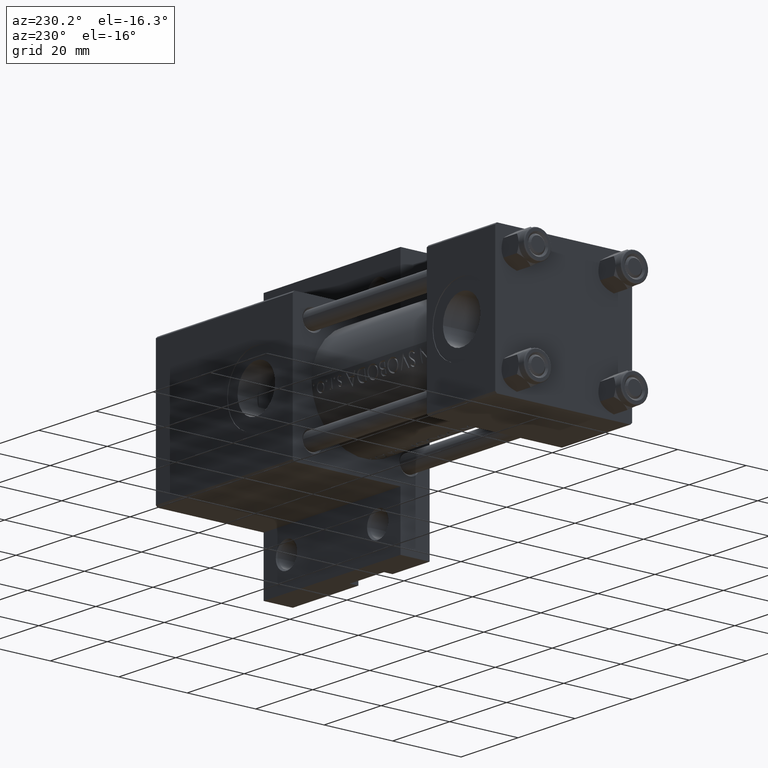
[diagram: clean part render]
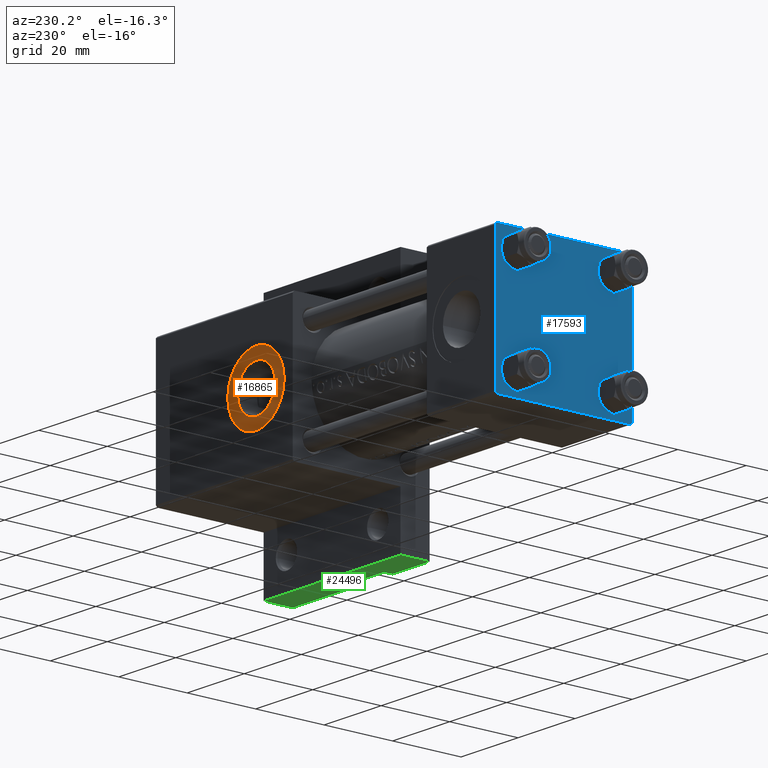
[diagram: same view with three faces highlighted in distinct colors, each labeled with its STEP entity id]
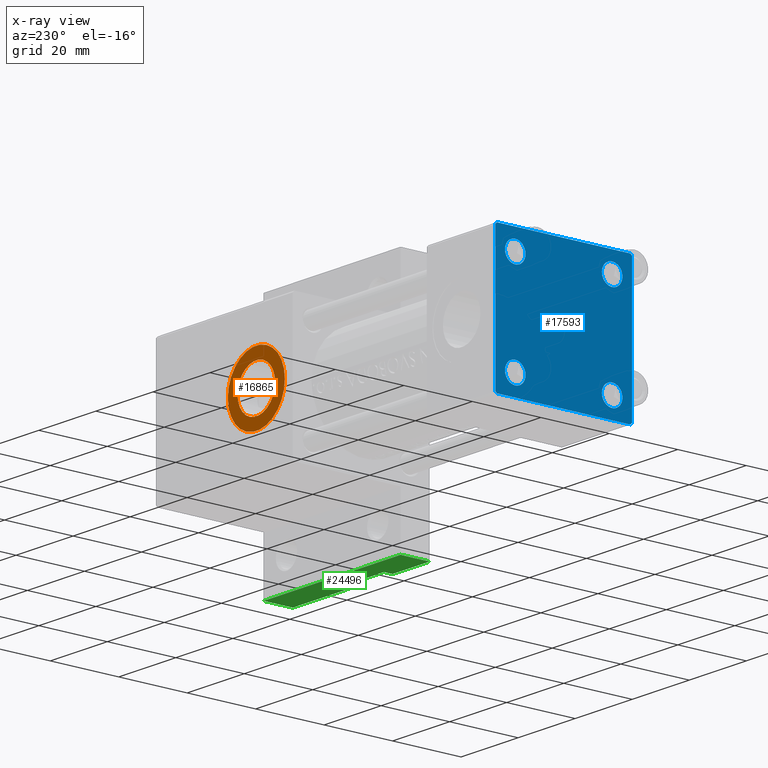
[diagram: x-ray of the same camera — body ghosted, the three highlighted faces saturated]
A machine part, auxiliary view with three faces highlighted in distinct colors.
The next image is the same camera in x-ray (body ghosted, the three faces saturated) — at least one of them is partly hidden behind the body in this view.
Their STEP definitions:

[orange] entity #16865 — the highlighted planar face has unit normal (0, 1, 0).
#124 = VERTEX_POINT ( 'NONE', #36950 ) ;
#1816 = FACE_OUTER_BOUND ( 'NONE', #37593, .T. ) ;
#2161 = AXIS2_PLACEMENT_3D ( 'NONE', #18654, #25185, #21565 ) ;
#2832 = EDGE_CURVE ( 'NONE', #124, #41550, #3675, .T. ) ;
#3675 = CIRCLE ( 'NONE', #2161, 6.580000000001542837 ) ;
#3937 = DIRECTION ( 'NONE',  ( 0.000000000000000000, 0.000000000000000000, 1.000000000000000000 ) ) ;
#4969 = EDGE_CURVE ( 'NONE', #19705, #33747, #20642, .T. ) ;
#5130 = CARTESIAN_POINT ( 'NONE',  ( 84.00000000000000000, -1.734723475976806897E-15, 19.80000000000000071 ) ) ;
#7397 = CARTESIAN_POINT ( 'NONE',  ( 84.00000000000000000, -1.734723475976806897E-15, 19.80000000000000071 ) ) ;
#8961 = CIRCLE ( 'NONE', #32018, 6.580000000001542837 ) ;
#10654 = CARTESIAN_POINT ( 'NONE',  ( 84.00000000000000000, -1.734723475976806897E-15, 19.80000000000000071 ) ) ;
#12828 = CARTESIAN_POINT ( 'NONE',  ( 73.99999999999845102, -5.100766768292640183E-16, 19.80000000000000071 ) ) ;
#14498 = DIRECTION ( 'NONE',  ( 1.000000000000000000, 0.000000000000000000, 0.000000000000000000 ) ) ;
#14552 = AXIS2_PLACEMENT_3D ( 'NONE', #30213, #44849, #23429 ) ;
#14840 = CARTESIAN_POINT ( 'NONE',  ( 90.58000000000154728, -1.734723475976806897E-15, 19.80000000000000071 ) ) ;
#15503 = PLANE ( 'NONE',  #14552 ) ;
#15929 = DIRECTION ( 'NONE',  ( 0.000000000000000000, 0.000000000000000000, 1.000000000000000000 ) ) ;
#16865 = ADVANCED_FACE ( 'NONE', ( #34761, #1816 ), #15503, .T. ) ;
#18654 = CARTESIAN_POINT ( 'NONE',  ( 84.00000000000000000, -1.734723475976806897E-15, 19.80000000000000071 ) ) ;
#19379 = DIRECTION ( 'NONE',  ( 0.000000000000000000, 0.000000000000000000, 1.000000000000000000 ) ) ;
#19705 = VERTEX_POINT ( 'NONE', #12828 ) ;
#19990 = ORIENTED_EDGE ( 'NONE', *, *, #4969, .T. ) ;
#20642 = CIRCLE ( 'NONE', #47565, 10.00000000000154898 ) ;
#21565 = DIRECTION ( 'NONE',  ( 1.000000000000000000, 0.000000000000000000, 0.000000000000000000 ) ) ;
#22817 = ORIENTED_EDGE ( 'NONE', *, *, #32366, .F. ) ;
#23429 = DIRECTION ( 'NONE',  ( 1.000000000000000000, 0.000000000000000000, -0.000000000000000000 ) ) ;
#23597 = CIRCLE ( 'NONE', #27422, 10.00000000000154898 ) ;
#25185 = DIRECTION ( 'NONE',  ( 0.000000000000000000, 0.000000000000000000, 1.000000000000000000 ) ) ;
#26385 = DIRECTION ( 'NONE',  ( 1.000000000000000000, 0.000000000000000000, 0.000000000000000000 ) ) ;
#27422 = AXIS2_PLACEMENT_3D ( 'NONE', #10654, #3937, #14498 ) ;
#29936 = DIRECTION ( 'NONE',  ( 1.000000000000000000, 0.000000000000000000, 0.000000000000000000 ) ) ;
#30213 = CARTESIAN_POINT ( 'NONE',  ( 84.00000000000000000, -1.734723475976806897E-15, 19.80000000000000071 ) ) ;
#30810 = EDGE_LOOP ( 'NONE', ( #22817, #40896 ) ) ;
#32018 = AXIS2_PLACEMENT_3D ( 'NONE', #5130, #15929, #29936 ) ;
#32366 = EDGE_CURVE ( 'NONE', #41550, #124, #8961, .T. ) ;
#33747 = VERTEX_POINT ( 'NONE', #43362 ) ;
#34761 = FACE_BOUND ( 'NONE', #30810, .T. ) ;
#36950 = CARTESIAN_POINT ( 'NONE',  ( 77.41999999999846693, -9.289058821376599092E-16, 19.80000000000000071 ) ) ;
#37593 = EDGE_LOOP ( 'NONE', ( #45813, #19990 ) ) ;
#37910 = EDGE_CURVE ( 'NONE', #33747, #19705, #23597, .T. ) ;
#40896 = ORIENTED_EDGE ( 'NONE', *, *, #2832, .F. ) ;
#41550 = VERTEX_POINT ( 'NONE', #14840 ) ;
#43362 = CARTESIAN_POINT ( 'NONE',  ( 94.00000000000154898, -1.734723475976806897E-15, 19.80000000000000071 ) ) ;
#44849 = DIRECTION ( 'NONE',  ( 0.000000000000000000, 0.000000000000000000, 1.000000000000000000 ) ) ;
#45813 = ORIENTED_EDGE ( 'NONE', *, *, #37910, .T. ) ;
#47565 = AXIS2_PLACEMENT_3D ( 'NONE', #7397, #19379, #26385 ) ;

[blue] entity #17593 — the highlighted planar face has unit normal (-1, 0, -0).
#402 = ORIENTED_EDGE ( 'NONE', *, *, #20593, .T. ) ;
#412 = PLANE ( 'NONE',  #13821 ) ;
#581 = VERTEX_POINT ( 'NONE', #34235 ) ;
#1096 = CARTESIAN_POINT ( 'NONE',  ( 0.000000000000000000, 14.14999999999999858, -17.14999999999998437 ) ) ;
#1553 = EDGE_CURVE ( 'NONE', #17790, #39196, #21666, .T. ) ;
#1739 = DIRECTION ( 'NONE',  ( 0.000000000000000000, 0.000000000000000000, 1.000000000000000000 ) ) ;
#2178 = CARTESIAN_POINT ( 'NONE',  ( 0.000000000000000000, -14.14999999999999503, 11.15000000000002345 ) ) ;
#3595 = LINE ( 'NONE', #25472, #46827 ) ;
#3836 = DIRECTION ( 'NONE',  ( 0.000000000000000000, -1.000000000000000000, 1.734723475976807094E-16 ) ) ;
#4018 = FACE_BOUND ( 'NONE', #9845, .T. ) ;
#4422 = AXIS2_PLACEMENT_3D ( 'NONE', #23170, #15245, #15478 ) ;
#4699 = CIRCLE ( 'NONE', #23119, 2.999999999999983569 ) ;
#4770 = VECTOR ( 'NONE', #42148, 1000.000000000000000 ) ;
#5055 = LINE ( 'NONE', #26948, #25299 ) ;
#5337 = CARTESIAN_POINT ( 'NONE',  ( 0.000000000000000000, 20.00000000000000000, 19.49999999999999289 ) ) ;
#5445 = CARTESIAN_POINT ( 'NONE',  ( 0.000000000000000000, -14.14999999999999503, -14.15000000000000391 ) ) ;
#5877 = ORIENTED_EDGE ( 'NONE', *, *, #26880, .T. ) ;
#6124 = CARTESIAN_POINT ( 'NONE',  ( 0.000000000000000000, -14.14999999999999503, -14.15000000000000391 ) ) ;
#6147 = CARTESIAN_POINT ( 'NONE',  ( 0.000000000000000000, 14.14999999999999858, 11.15000000000001990 ) ) ;
#7068 = ORIENTED_EDGE ( 'NONE', *, *, #1553, .F. ) ;
#7138 = FACE_OUTER_BOUND ( 'NONE', #31977, .T. ) ;
#7394 = VECTOR ( 'NONE', #12468, 1000.000000000000000 ) ;
#7606 = FACE_BOUND ( 'NONE', #12662, .T. ) ;
#7917 = LINE ( 'NONE', #22811, #7394 ) ;
#8303 = VERTEX_POINT ( 'NONE', #8600 ) ;
#8535 = DIRECTION ( 'NONE',  ( -0.000000000000000000, 0.7071067811865500152, 0.7071067811865451302 ) ) ;
#8538 = ORIENTED_EDGE ( 'NONE', *, *, #16488, .T. ) ;
#8600 = CARTESIAN_POINT ( 'NONE',  ( 0.000000000000000000, 14.14999999999999858, -11.15000000000001812 ) ) ;
#8788 = VERTEX_POINT ( 'NONE', #1096 ) ;
#9087 = EDGE_CURVE ( 'NONE', #41103, #35725, #42850, .T. ) ;
#9845 = EDGE_LOOP ( 'NONE', ( #38542, #24285 ) ) ;
#9940 = CARTESIAN_POINT ( 'NONE',  ( 0.000000000000000000, 20.00000000000000000, -19.50000000000002132 ) ) ;
#9955 = VERTEX_POINT ( 'NONE', #15451 ) ;
#10510 = CIRCLE ( 'NONE', #39749, 2.999999999999983569 ) ;
#11057 = CARTESIAN_POINT ( 'NONE',  ( 0.000000000000000000, -20.00000000000000000, -19.49999999999999645 ) ) ;
#11444 = DIRECTION ( 'NONE',  ( -1.000000000000000000, 0.000000000000000000, -0.000000000000000000 ) ) ;
#12062 = CIRCLE ( 'NONE', #38962, 3.000000000000004441 ) ;
#12468 = DIRECTION ( 'NONE',  ( 0.000000000000000000, -0.7071067811865401342, 0.7071067811865549002 ) ) ;
#12537 = DIRECTION ( 'NONE',  ( 1.000000000000000000, 0.000000000000000000, 0.000000000000000000 ) ) ;
#12662 = EDGE_LOOP ( 'NONE', ( #22723, #402 ) ) ;
#12746 = VERTEX_POINT ( 'NONE', #38209 ) ;
#13171 = DIRECTION ( 'NONE',  ( 0.000000000000000000, 0.000000000000000000, 1.000000000000000000 ) ) ;
#13395 = VERTEX_POINT ( 'NONE', #11057 ) ;
#13551 = ORIENTED_EDGE ( 'NONE', *, *, #23773, .T. ) ;
#13821 = AXIS2_PLACEMENT_3D ( 'NONE', #15048, #11444, #26123 ) ;
#13882 = CARTESIAN_POINT ( 'NONE',  ( 0.000000000000000000, 14.14999999999999858, -14.15000000000000036 ) ) ;
#15048 = CARTESIAN_POINT ( 'NONE',  ( 0.000000000000000000, 0.000000000000000000, 0.000000000000000000 ) ) ;
#15245 = DIRECTION ( 'NONE',  ( 1.000000000000000000, 0.000000000000000000, 0.000000000000000000 ) ) ;
#15451 = CARTESIAN_POINT ( 'NONE',  ( 0.000000000000000000, -14.14999999999999503, -17.15000000000000924 ) ) ;
#15478 = DIRECTION ( 'NONE',  ( 0.000000000000000000, 0.000000000000000000, 1.000000000000000000 ) ) ;
#16488 = EDGE_CURVE ( 'NONE', #35725, #21987, #3595, .T. ) ;
#16811 = DIRECTION ( 'NONE',  ( 0.000000000000000000, 8.673617379884036705E-17, -1.000000000000000000 ) ) ;
#16869 = CARTESIAN_POINT ( 'NONE',  ( -0.000000000000000000, 19.74999999999986855, -19.75000000000014211 ) ) ;
#16938 = AXIS2_PLACEMENT_3D ( 'NONE', #22534, #37223, #44897 ) ;
#17243 = VERTEX_POINT ( 'NONE', #2178 ) ;
#17247 = EDGE_CURVE ( 'NONE', #39273, #13395, #5055, .T. ) ;
#17484 = CIRCLE ( 'NONE', #4422, 2.999999999999983569 ) ;
#17593 = ADVANCED_FACE ( 'NONE', ( #7606, #4018, #18414, #33362, #7138 ), #412, .T. ) ;
#17790 = VERTEX_POINT ( 'NONE', #47244 ) ;
#18399 = EDGE_LOOP ( 'NONE', ( #13551, #37788 ) ) ;
#18414 = FACE_BOUND ( 'NONE', #18399, .T. ) ;
#18535 = DIRECTION ( 'NONE',  ( 0.000000000000000000, -1.000000000000000000, -2.602085213965210149E-16 ) ) ;
#19984 = CARTESIAN_POINT ( 'NONE',  ( 0.000000000000000000, -14.14999999999999503, 14.15000000000000391 ) ) ;
#20047 = VERTEX_POINT ( 'NONE', #5337 ) ;
#20359 = LINE ( 'NONE', #35064, #25901 ) ;
#20593 = EDGE_CURVE ( 'NONE', #17243, #12746, #28500, .T. ) ;
#20879 = EDGE_CURVE ( 'NONE', #12746, #17243, #43866, .T. ) ;
#20939 = EDGE_CURVE ( 'NONE', #581, #41752, #4699, .T. ) ;
#21204 = DIRECTION ( 'NONE',  ( 0.000000000000000000, 0.7071067811865425767, -0.7071067811865525687 ) ) ;
#21666 = LINE ( 'NONE', #40218, #22052 ) ;
#21987 = VERTEX_POINT ( 'NONE', #30207 ) ;
#22039 = DIRECTION ( 'NONE',  ( 1.000000000000000000, 0.000000000000000000, 0.000000000000000000 ) ) ;
#22052 = VECTOR ( 'NONE', #18535, 1000.000000000000000 ) ;
#22534 = CARTESIAN_POINT ( 'NONE',  ( 0.000000000000000000, -14.14999999999999503, 14.15000000000000391 ) ) ;
#22650 = AXIS2_PLACEMENT_3D ( 'NONE', #13882, #22039, #35781 ) ;
#22723 = ORIENTED_EDGE ( 'NONE', *, *, #20879, .T. ) ;
#22811 = CARTESIAN_POINT ( 'NONE',  ( 0.000000000000000000, -19.75000000000020961, -19.74999999999979394 ) ) ;
#23119 = AXIS2_PLACEMENT_3D ( 'NONE', #37584, #12537, #34686 ) ;
#23170 = CARTESIAN_POINT ( 'NONE',  ( 0.000000000000000000, 14.14999999999999858, 14.15000000000000036 ) ) ;
#23680 = DIRECTION ( 'NONE',  ( 1.000000000000000000, 0.000000000000000000, 0.000000000000000000 ) ) ;
#23773 = EDGE_CURVE ( 'NONE', #8303, #8788, #43407, .T. ) ;
#24285 = ORIENTED_EDGE ( 'NONE', *, *, #39075, .T. ) ;
#24442 = EDGE_CURVE ( 'NONE', #17790, #20047, #43118, .T. ) ;
#24676 = CARTESIAN_POINT ( 'NONE',  ( 0.000000000000000000, -14.14999999999999503, -11.15000000000000036 ) ) ;
#24679 = AXIS2_PLACEMENT_3D ( 'NONE', #19984, #33756, #1739 ) ;
#24835 = CARTESIAN_POINT ( 'NONE',  ( -0.000000000000000000, 19.75000000000013500, 19.74999999999986144 ) ) ;
#25299 = VECTOR ( 'NONE', #16811, 1000.000000000000000 ) ;
#25472 = CARTESIAN_POINT ( 'NONE',  ( 0.000000000000000000, 20.00000000000000000, -20.00000000000000711 ) ) ;
#25901 = VECTOR ( 'NONE', #26903, 1000.000000000000000 ) ;
#26123 = DIRECTION ( 'NONE',  ( -0.000000000000000000, 0.000000000000000000, 1.000000000000000000 ) ) ;
#26623 = CIRCLE ( 'NONE', #45037, 3.000000000000004441 ) ;
#26880 = EDGE_CURVE ( 'NONE', #39273, #39196, #41957, .T. ) ;
#26903 = DIRECTION ( 'NONE',  ( 0.000000000000000000, 0.000000000000000000, -1.000000000000000000 ) ) ;
#26948 = CARTESIAN_POINT ( 'NONE',  ( 0.000000000000000000, -20.00000000000000355, 19.99999999999998934 ) ) ;
#27483 = CARTESIAN_POINT ( 'NONE',  ( 0.000000000000000000, 19.50000000000000711, -20.00000000000000711 ) ) ;
#28155 = CARTESIAN_POINT ( 'NONE',  ( 0.000000000000000000, -19.49999999999999289, 19.99999999999998934 ) ) ;
#28500 = CIRCLE ( 'NONE', #16938, 2.999999999999983569 ) ;
#29515 = EDGE_CURVE ( 'NONE', #8788, #8303, #10510, .T. ) ;
#30207 = CARTESIAN_POINT ( 'NONE',  ( 0.000000000000000000, -19.50000000000000711, -20.00000000000000000 ) ) ;
#30384 = EDGE_CURVE ( 'NONE', #21987, #13395, #7917, .T. ) ;
#30620 = ORIENTED_EDGE ( 'NONE', *, *, #9087, .T. ) ;
#30954 = DIRECTION ( 'NONE',  ( 1.000000000000000000, 0.000000000000000000, 0.000000000000000000 ) ) ;
#31198 = EDGE_CURVE ( 'NONE', #36363, #9955, #26623, .T. ) ;
#31977 = EDGE_LOOP ( 'NONE', ( #36336, #30620, #8538, #43358, #32575, #5877, #7068, #45663 ) ) ;
#32008 = CARTESIAN_POINT ( 'NONE',  ( 0.000000000000000000, -20.00000000000000355, 19.49999999999998224 ) ) ;
#32159 = EDGE_CURVE ( 'NONE', #20047, #41103, #20359, .T. ) ;
#32575 = ORIENTED_EDGE ( 'NONE', *, *, #17247, .F. ) ;
#33362 = FACE_BOUND ( 'NONE', #42729, .T. ) ;
#33756 = DIRECTION ( 'NONE',  ( 1.000000000000000000, 0.000000000000000000, 0.000000000000000000 ) ) ;
#34235 = CARTESIAN_POINT ( 'NONE',  ( 0.000000000000000000, 14.14999999999999858, 17.14999999999998437 ) ) ;
#34686 = DIRECTION ( 'NONE',  ( 0.000000000000000000, 0.000000000000000000, 1.000000000000000000 ) ) ;
#34906 = ORIENTED_EDGE ( 'NONE', *, *, #39147, .T. ) ;
#35064 = CARTESIAN_POINT ( 'NONE',  ( 0.000000000000000000, 20.00000000000000000, 20.00000000000000000 ) ) ;
#35725 = VERTEX_POINT ( 'NONE', #27483 ) ;
#35781 = DIRECTION ( 'NONE',  ( 0.000000000000000000, 0.000000000000000000, 1.000000000000000000 ) ) ;
#36336 = ORIENTED_EDGE ( 'NONE', *, *, #32159, .T. ) ;
#36363 = VERTEX_POINT ( 'NONE', #24676 ) ;
#37223 = DIRECTION ( 'NONE',  ( 1.000000000000000000, 0.000000000000000000, 0.000000000000000000 ) ) ;
#37584 = CARTESIAN_POINT ( 'NONE',  ( 0.000000000000000000, 14.14999999999999858, 14.15000000000000036 ) ) ;
#37645 = CARTESIAN_POINT ( 'NONE',  ( -0.000000000000000000, -19.74999999999992539, 19.75000000000006395 ) ) ;
#37788 = ORIENTED_EDGE ( 'NONE', *, *, #29515, .T. ) ;
#38092 = VECTOR ( 'NONE', #21204, 999.9999999999998863 ) ;
#38209 = CARTESIAN_POINT ( 'NONE',  ( 0.000000000000000000, -14.14999999999999503, 17.14999999999998792 ) ) ;
#38372 = DIRECTION ( 'NONE',  ( 0.000000000000000000, 0.000000000000000000, 1.000000000000000000 ) ) ;
#38542 = ORIENTED_EDGE ( 'NONE', *, *, #31198, .T. ) ;
#38807 = VECTOR ( 'NONE', #8535, 1000.000000000000114 ) ;
#38962 = AXIS2_PLACEMENT_3D ( 'NONE', #5445, #30954, #46316 ) ;
#39075 = EDGE_CURVE ( 'NONE', #9955, #36363, #12062, .T. ) ;
#39147 = EDGE_CURVE ( 'NONE', #41752, #581, #17484, .T. ) ;
#39167 = CARTESIAN_POINT ( 'NONE',  ( 0.000000000000000000, 14.14999999999999858, -14.15000000000000036 ) ) ;
#39196 = VERTEX_POINT ( 'NONE', #28155 ) ;
#39273 = VERTEX_POINT ( 'NONE', #32008 ) ;
#39749 = AXIS2_PLACEMENT_3D ( 'NONE', #39167, #42761, #13171 ) ;
#40218 = CARTESIAN_POINT ( 'NONE',  ( 0.000000000000000000, 20.00000000000000000, 20.00000000000000000 ) ) ;
#40959 = ORIENTED_EDGE ( 'NONE', *, *, #20939, .T. ) ;
#41103 = VERTEX_POINT ( 'NONE', #9940 ) ;
#41752 = VERTEX_POINT ( 'NONE', #6147 ) ;
#41957 = LINE ( 'NONE', #37645, #38807 ) ;
#42148 = DIRECTION ( 'NONE',  ( -0.000000000000000000, -0.7071067811865524577, -0.7071067811865426878 ) ) ;
#42729 = EDGE_LOOP ( 'NONE', ( #40959, #34906 ) ) ;
#42761 = DIRECTION ( 'NONE',  ( 1.000000000000000000, 0.000000000000000000, 0.000000000000000000 ) ) ;
#42850 = LINE ( 'NONE', #16869, #4770 ) ;
#43118 = LINE ( 'NONE', #24835, #38092 ) ;
#43358 = ORIENTED_EDGE ( 'NONE', *, *, #30384, .T. ) ;
#43407 = CIRCLE ( 'NONE', #22650, 2.999999999999983569 ) ;
#43866 = CIRCLE ( 'NONE', #24679, 2.999999999999983569 ) ;
#44897 = DIRECTION ( 'NONE',  ( 0.000000000000000000, 0.000000000000000000, 1.000000000000000000 ) ) ;
#45037 = AXIS2_PLACEMENT_3D ( 'NONE', #6124, #23680, #38372 ) ;
#45663 = ORIENTED_EDGE ( 'NONE', *, *, #24442, .T. ) ;
#46316 = DIRECTION ( 'NONE',  ( 0.000000000000000000, 0.000000000000000000, 1.000000000000000000 ) ) ;
#46827 = VECTOR ( 'NONE', #3836, 1000.000000000000000 ) ;
#47244 = CARTESIAN_POINT ( 'NONE',  ( 0.000000000000000000, 19.50000000000000000, 20.00000000000000000 ) ) ;

[green] entity #24496 — the highlighted planar face has unit normal (-0, 0, -1).
#81 = FACE_OUTER_BOUND ( 'NONE', #6833, .T. ) ;
#364 = LINE ( 'NONE', #33554, #25117 ) ;
#669 = VERTEX_POINT ( 'NONE', #9902 ) ;
#1897 = VERTEX_POINT ( 'NONE', #12222 ) ;
#4740 = CARTESIAN_POINT ( 'NONE',  ( 70.99999999999998579, 35.99999999999995026, -11.50000000000000000 ) ) ;
#5107 = VERTEX_POINT ( 'NONE', #31442 ) ;
#5227 = VERTEX_POINT ( 'NONE', #28053 ) ;
#6479 = EDGE_CURVE ( 'NONE', #35770, #669, #27173, .T. ) ;
#6833 = EDGE_LOOP ( 'NONE', ( #33997, #15386, #24404, #27462, #36796, #9109, #25455, #26550 ) ) ;
#8817 = EDGE_CURVE ( 'NONE', #36583, #35770, #25101, .T. ) ;
#9109 = ORIENTED_EDGE ( 'NONE', *, *, #41874, .T. ) ;
#9902 = CARTESIAN_POINT ( 'NONE',  ( 83.99999999999997158, 35.99999999999995026, -20.00000000000000000 ) ) ;
#10175 = DIRECTION ( 'NONE',  ( 1.000000000000000000, 1.301042606982605715E-15, 0.000000000000000000 ) ) ;
#10811 = CARTESIAN_POINT ( 'NONE',  ( 95.99999999999997158, 35.99999999999995026, -17.50000000000000000 ) ) ;
#12222 = CARTESIAN_POINT ( 'NONE',  ( 118.9999999999999716, 36.00000000000001421, -11.50000000000000000 ) ) ;
#12251 = DIRECTION ( 'NONE',  ( 1.000000000000000000, 1.301042606982605715E-15, 0.000000000000000000 ) ) ;
#14716 = PLANE ( 'NONE',  #45733 ) ;
#15386 = ORIENTED_EDGE ( 'NONE', *, *, #19996, .F. ) ;
#15419 = DIRECTION ( 'NONE',  ( -1.000000000000000000, -1.301042606982605715E-15, 0.000000000000000000 ) ) ;
#15572 = LINE ( 'NONE', #30049, #44289 ) ;
#15658 = LINE ( 'NONE', #37576, #43080 ) ;
#15914 = CARTESIAN_POINT ( 'NONE',  ( 70.99999999999998579, 35.99999999999995026, -20.00000000000000000 ) ) ;
#17369 = CARTESIAN_POINT ( 'NONE',  ( 95.99999999999997158, 35.99999999999995026, -17.50000000000000000 ) ) ;
#19928 = CARTESIAN_POINT ( 'NONE',  ( 70.99999999999998579, 35.99999999999995026, -20.00000000000000000 ) ) ;
#19996 = EDGE_CURVE ( 'NONE', #25460, #23453, #15658, .T. ) ;
#20994 = DIRECTION ( 'NONE',  ( 0.000000000000000000, 0.000000000000000000, -1.000000000000000000 ) ) ;
#23453 = VERTEX_POINT ( 'NONE', #10811 ) ;
#24404 = ORIENTED_EDGE ( 'NONE', *, *, #32077, .T. ) ;
#24496 = ADVANCED_FACE ( 'NONE', ( #81 ), #14716, .T. ) ;
#24541 = DIRECTION ( 'NONE',  ( 0.000000000000000000, 0.000000000000000000, -1.000000000000000000 ) ) ;
#24717 = VECTOR ( 'NONE', #20994, 1000.000000000000000 ) ;
#25101 = LINE ( 'NONE', #39546, #24717 ) ;
#25117 = VECTOR ( 'NONE', #44120, 1000.000000000000000 ) ;
#25455 = ORIENTED_EDGE ( 'NONE', *, *, #42341, .T. ) ;
#25460 = VERTEX_POINT ( 'NONE', #45902 ) ;
#26262 = DIRECTION ( 'NONE',  ( -1.301042606982605715E-15, 1.000000000000000000, 0.000000000000000000 ) ) ;
#26550 = ORIENTED_EDGE ( 'NONE', *, *, #38570, .F. ) ;
#27173 = LINE ( 'NONE', #19928, #42274 ) ;
#27462 = ORIENTED_EDGE ( 'NONE', *, *, #6479, .F. ) ;
#27760 = LINE ( 'NONE', #17369, #40509 ) ;
#28053 = CARTESIAN_POINT ( 'NONE',  ( 118.9999999999999716, 36.00000000000001421, -20.00000000000000000 ) ) ;
#28982 = VECTOR ( 'NONE', #10175, 1000.000000000000000 ) ;
#30049 = CARTESIAN_POINT ( 'NONE',  ( 83.99999999999997158, 35.99999999999995026, -17.50000000000000000 ) ) ;
#31442 = CARTESIAN_POINT ( 'NONE',  ( 95.99999999999997158, 35.99999999999995026, -20.00000000000000000 ) ) ;
#32077 = EDGE_CURVE ( 'NONE', #25460, #669, #15572, .T. ) ;
#33191 = DIRECTION ( 'NONE',  ( -0.000000000000000000, -0.000000000000000000, -1.000000000000000000 ) ) ;
#33554 = CARTESIAN_POINT ( 'NONE',  ( 70.99999999999998579, 35.99999999999995026, -11.50000000000000000 ) ) ;
#33997 = ORIENTED_EDGE ( 'NONE', *, *, #42921, .F. ) ;
#35380 = LINE ( 'NONE', #42119, #35864 ) ;
#35770 = VERTEX_POINT ( 'NONE', #15914 ) ;
#35864 = VECTOR ( 'NONE', #24541, 1000.000000000000000 ) ;
#36583 = VERTEX_POINT ( 'NONE', #4740 ) ;
#36796 = ORIENTED_EDGE ( 'NONE', *, *, #8817, .F. ) ;
#37576 = CARTESIAN_POINT ( 'NONE',  ( 83.99999999999997158, 35.99999999999995026, -17.50000000000000000 ) ) ;
#38570 = EDGE_CURVE ( 'NONE', #5107, #5227, #42020, .T. ) ;
#39546 = CARTESIAN_POINT ( 'NONE',  ( 70.99999999999998579, 35.99999999999995026, -11.50000000000000000 ) ) ;
#40509 = VECTOR ( 'NONE', #43352, 1000.000000000000000 ) ;
#41168 = CARTESIAN_POINT ( 'NONE',  ( 70.99999999999998579, 35.99999999999995026, -11.50000000000000000 ) ) ;
#41874 = EDGE_CURVE ( 'NONE', #36583, #1897, #364, .T. ) ;
#42020 = LINE ( 'NONE', #45616, #28982 ) ;
#42119 = CARTESIAN_POINT ( 'NONE',  ( 118.9999999999999716, 36.00000000000001421, -11.50000000000000000 ) ) ;
#42274 = VECTOR ( 'NONE', #12251, 1000.000000000000000 ) ;
#42341 = EDGE_CURVE ( 'NONE', #1897, #5227, #35380, .T. ) ;
#42921 = EDGE_CURVE ( 'NONE', #23453, #5107, #27760, .T. ) ;
#43080 = VECTOR ( 'NONE', #44545, 1000.000000000000000 ) ;
#43352 = DIRECTION ( 'NONE',  ( -0.000000000000000000, -0.000000000000000000, -1.000000000000000000 ) ) ;
#44120 = DIRECTION ( 'NONE',  ( 1.000000000000000000, 1.301042606982605715E-15, 0.000000000000000000 ) ) ;
#44289 = VECTOR ( 'NONE', #33191, 1000.000000000000000 ) ;
#44545 = DIRECTION ( 'NONE',  ( 1.000000000000000000, 0.000000000000000000, 0.000000000000000000 ) ) ;
#45616 = CARTESIAN_POINT ( 'NONE',  ( 70.99999999999998579, 35.99999999999995026, -20.00000000000000000 ) ) ;
#45733 = AXIS2_PLACEMENT_3D ( 'NONE', #41168, #26262, #15419 ) ;
#45902 = CARTESIAN_POINT ( 'NONE',  ( 83.99999999999997158, 35.99999999999995026, -17.50000000000000000 ) ) ;